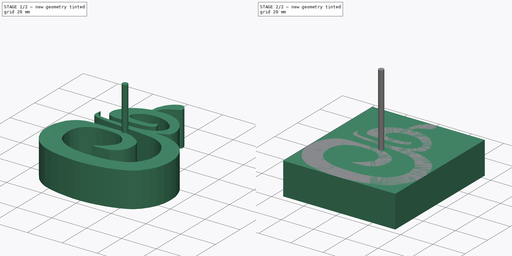
[diagram: build sequence overview — one tinted view per stage of 2, left to right]
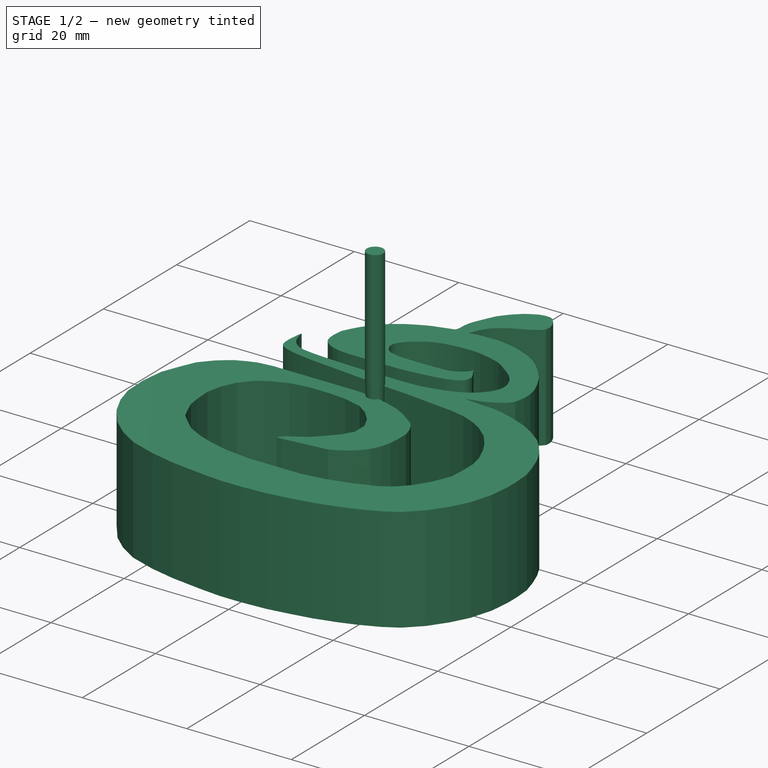
[diagram: stage 1 of 2 — iso view after this stage's code; geometry added in this stage tinted green]
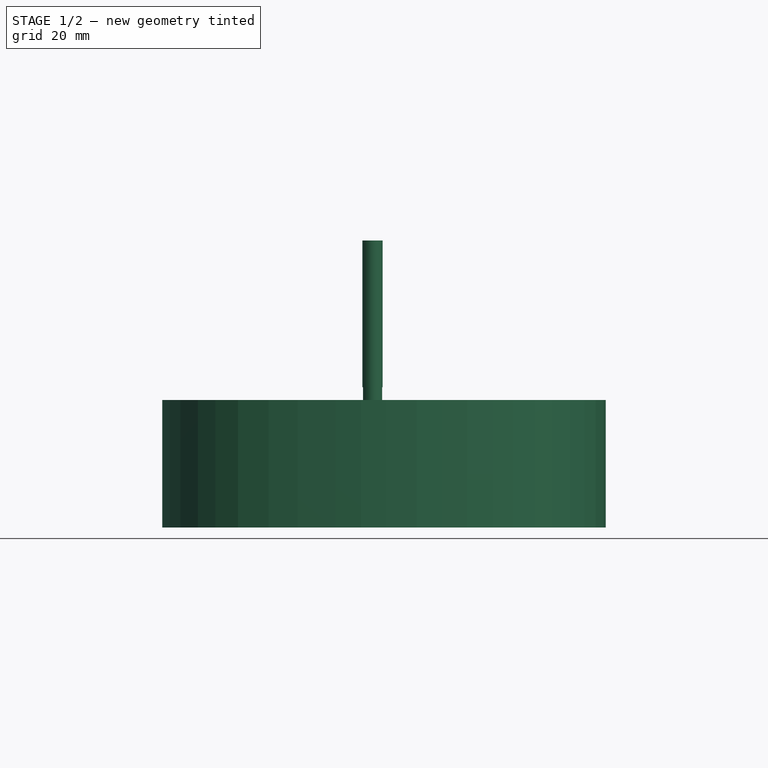
[diagram: stage 1 of 2 — front view after this stage's code; geometry added in this stage tinted green]
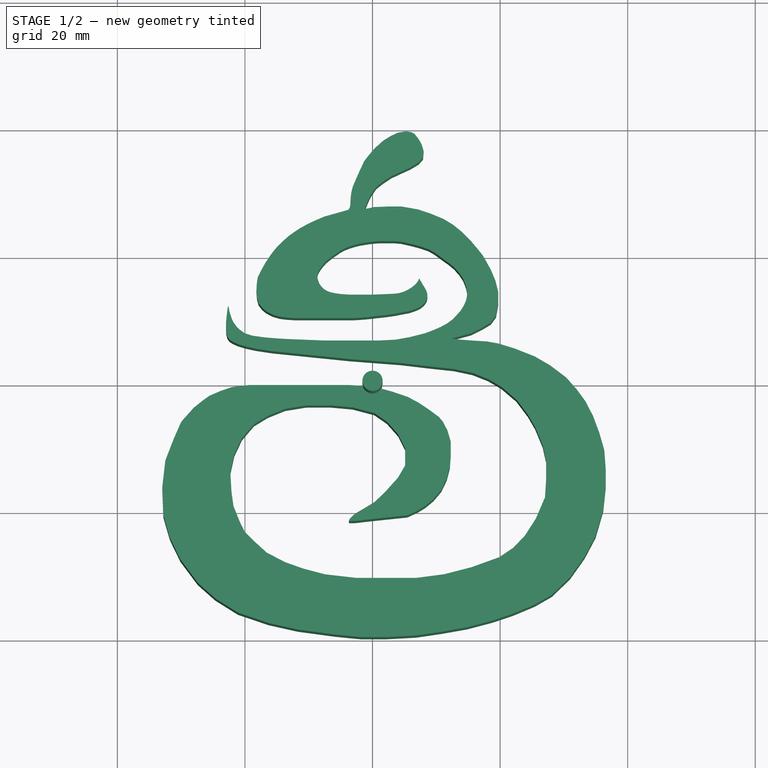
[diagram: stage 1 of 2 — top view after this stage's code; geometry added in this stage tinted green]
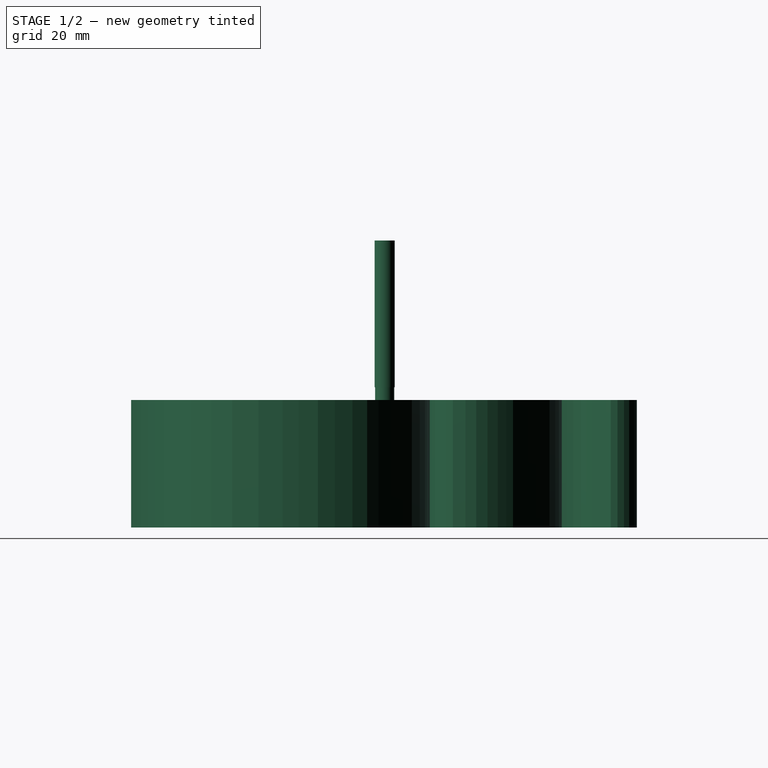
[diagram: stage 1 of 2 — right view after this stage's code; geometry added in this stage tinted green]
FCSTD DOCUMENT  (FreeCAD 1.0R)
Label: 111
License: All rights reserved
LicenseURL: https://en.wikipedia.org/wiki/All_rights_reserved
objects: Part::FeaturePython×3, App::DocumentObjectGroup×3, Path::FeaturePython×3, Image::ImagePlane×1, Sketcher::SketchObject×1, PartDesign::Pad×1, PartDesign::Body×1, App::FeaturePython×1, Part::Part2DObjectPython×1
note: 11 computed .brp shape members not serialized (recipe doc carries the construction recipe); baked Part::Feature solids carry a one-line shape summary decoded from their .brp

FEATURE [Image::ImagePlane] _e547f36fd410fd535918b487bc5c282  label="7e547f36fd410fd535918b487bc5c282"
  Placement = pos=(0,11.4,0) rot=(0,0,1;0rad)
  XSize = 107.817
  YSize = 107.817
FEATURE [Sketcher::SketchObject] Sketch
  ArcFitTolerance = 1e-06
  AttachmentSupport = -> [XY_Plane]
  FullyConstrained = false
  MakeInternals = false
  MapMode = 5
  sketch-geometry (338):
    g0: LineSegment StartX=5.15628 StartY=39.5354 StartZ=0 EndX=3.93099 EndY=39.3241 EndZ=0
    g1: LineSegment StartX=3.93099 StartY=39.3241 StartZ=0 EndX=2.79019 EndY=38.7748 EndZ=0
    g2: LineSegment StartX=2.79019 StartY=38.7748 StartZ=0 EndX=1.69164 EndY=38.0988 EndZ=0
    g3: LineSegment StartX=1.69164 StartY=38.0988 StartZ=0 EndX=0.508595 EndY=37.0425 EndZ=0
    g4: LineSegment StartX=0.508595 StartY=37.0425 StartZ=0 EndX=0 EndY=36.5035 EndZ=0
    g5: LineSegment StartX=0 StartY=36.5035 StartZ=0 EndX=-0.644927 EndY=35.7263 EndZ=0
    g6: LineSegment StartX=-0.644927 StartY=35.7263 StartZ=0 EndX=-1.28221 EndY=34.9025 EndZ=0
    g7: LineSegment StartX=-1.28221 StartY=34.9025 StartZ=0 EndX=-1.73297 EndY=33.9699 EndZ=0
    g8: LineSegment StartX=-1.73297 StartY=33.9699 StartZ=0 EndX=-2.19928 EndY=32.944 EndZ=0
    g9: LineSegment StartX=-2.19928 StartY=32.944 StartZ=0 EndX=-2.58787 EndY=32.0736 EndZ=0
    g10: LineSegment StartX=-2.58787 StartY=32.0736 StartZ=0 EndX=-3.08622 EndY=30.8876 EndZ=0
    g11: LineSegment StartX=-3.08622 StartY=30.8876 StartZ=0 EndX=-3.31937 EndY=29.986 EndZ=0
    g12: LineSegment StartX=-3.31937 StartY=29.986 StartZ=0 EndX=-3.42818 EndY=29.1001 EndZ=0
    g13: LineSegment StartX=-3.42818 StartY=29.1001 StartZ=0 EndX=-3.47481 EndY=28.0897 EndZ=0
    g14: LineSegment StartX=-3.47481 StartY=28.0897 StartZ=0 EndX=-3.58361 EndY=27.5457 EndZ=0
    g15: LineSegment StartX=-3.58361 StartY=27.5457 StartZ=0 EndX=-3.81677 EndY=27.2348 EndZ=0
    g16: LineSegment StartX=-3.81677 StartY=27.2348 StartZ=0 EndX=-4.90748 EndY=26.9332 EndZ=0
    g17: LineSegment StartX=-4.90748 StartY=26.9332 StartZ=0 EndX=-5.99552 EndY=26.6223 EndZ=0
    g18: LineSegment StartX=-5.99552 StartY=26.6223 StartZ=0 EndX=-7.59651 EndY=26.1715 EndZ=0
    g19: LineSegment StartX=-7.59651 StartY=26.1715 StartZ=0 EndX=-9.01097 EndY=25.5653 EndZ=0
    g20: LineSegment StartX=-9.01097 StartY=25.5653 StartZ=0 EndX=-10.147 EndY=25.0192 EndZ=0
    g21: LineSegment StartX=-10.147 StartY=25.0192 StartZ=0 EndX=-11.2817 EndY=24.413 EndZ=0
    g22: LineSegment StartX=-11.2817 StartY=24.413 StartZ=0 EndX=-12.2454 EndY=23.7757 EndZ=0
    g23: LineSegment StartX=-12.2454 StartY=23.7757 StartZ=0 EndX=-13.1962 EndY=23.1041 EndZ=0
    g24: LineSegment StartX=-13.1962 StartY=23.1041 StartZ=0 EndX=-13.9422 EndY=22.4202 EndZ=0
    g25: LineSegment StartX=-13.9422 StartY=22.4202 StartZ=0 EndX=-14.7505 EndY=21.6585 EndZ=0
    g26: LineSegment StartX=-14.7505 StartY=21.6585 StartZ=0 EndX=-15.451 EndY=20.863 EndZ=0
    g27: LineSegment StartX=-15.451 StartY=20.863 StartZ=0 EndX=-16.0883 EndY=20.0081 EndZ=0
    g28: LineSegment StartX=-16.0883 StartY=20.0081 StartZ=0 EndX=-16.7101 EndY=19.0755 EndZ=0
    g29: LineSegment StartX=-16.7101 StartY=19.0755 StartZ=0 EndX=-17.3629 EndY=17.9252 EndZ=0
    g30: LineSegment StartX=-17.3629 StartY=17.9252 StartZ=0 EndX=-18.0018 EndY=16.6458 EndZ=0
    g31: LineSegment StartX=5.7042 StartY=11.3544 StartZ=0 EndX=6.43654 EndY=11.5949 EndZ=0
    g32: LineSegment StartX=6.43654 StartY=11.5949 StartZ=0 EndX=6.95201 EndY=11.7834 EndZ=0
    g33: LineSegment StartX=6.95201 StartY=11.7834 StartZ=0 EndX=7.42202 EndY=12.002 EndZ=0
    g34: LineSegment StartX=7.42202 StartY=12.002 StartZ=0 EndX=7.81552 EndY=12.2971 EndZ=0
    g35: LineSegment StartX=7.81552 StartY=12.2971 StartZ=0 EndX=8.16529 EndY=12.636 EndZ=0
    g36: LineSegment StartX=8.16529 StartY=12.636 StartZ=0 EndX=8.42763 EndY=13.0185 EndZ=0
    g37: LineSegment StartX=8.42763 StartY=13.0185 StartZ=0 EndX=8.54786 EndY=13.3464 EndZ=0
    g38: LineSegment StartX=8.54786 StartY=13.3464 StartZ=0 EndX=8.59158 EndY=13.6744 EndZ=0
    g39: LineSegment StartX=8.59158 StartY=13.6744 StartZ=0 EndX=8.59158 EndY=14.0569 EndZ=0
    g40: LineSegment StartX=8.59158 StartY=14.0569 StartZ=0 EndX=8.5163 EndY=14.3278 EndZ=0
    g41: LineSegment StartX=8.5163 StartY=14.3278 StartZ=0 EndX=8.42032 EndY=14.6097 EndZ=0
    g42: LineSegment StartX=8.42032 StartY=14.6097 StartZ=0 EndX=8.27635 EndY=14.8676 EndZ=0
    g43: LineSegment StartX=8.27635 StartY=14.8676 StartZ=0 EndX=8.15038 EndY=15.0776 EndZ=0
    g44: LineSegment StartX=8.15038 StartY=15.0776 StartZ=0 EndX=8.00641 EndY=15.3176 EndZ=0
    g45: LineSegment StartX=8.00641 StartY=15.3176 StartZ=0 EndX=7.85044 EndY=15.5575 EndZ=0
    g46: LineSegment StartX=7.85044 StartY=15.5575 StartZ=0 EndX=7.69981 EndY=15.8306 EndZ=0
    g47: LineSegment StartX=7.69981 StartY=15.8306 StartZ=0 EndX=7.51985 EndY=16.1425 EndZ=0
    g48: LineSegment StartX=7.51985 StartY=16.1425 StartZ=0 EndX=7.37587 EndY=16.4005 EndZ=0
    g49: LineSegment StartX=7.37587 StartY=16.4005 StartZ=0 EndX=7.28589 EndY=16.5085 EndZ=0
    g50: LineSegment StartX=7.28589 StartY=16.5085 StartZ=0 EndX=7.2379 EndY=16.3225 EndZ=0
    g51: LineSegment StartX=7.2379 StartY=16.3225 StartZ=0 EndX=7.08793 EndY=16.0286 EndZ=0
    g52: LineSegment StartX=7.08793 StartY=16.0286 StartZ=0 EndX=6.84798 EndY=15.6986 EndZ=0
    g53: LineSegment StartX=6.84798 StartY=15.6986 StartZ=0 EndX=6.53449 EndY=15.389 EndZ=0
    g54: LineSegment StartX=6.53449 StartY=15.389 StartZ=0 EndX=6.13857 EndY=15.0891 EndZ=0
    g55: LineSegment StartX=6.13857 StartY=15.0891 StartZ=0 EndX=5.81463 EndY=14.8791 EndZ=0
    g56: LineSegment StartX=5.81463 StartY=14.8791 StartZ=0 EndX=5.44271 EndY=14.6632 EndZ=0
    g57: LineSegment StartX=5.44271 StartY=14.6632 StartZ=0 EndX=5.12438 EndY=14.5105 EndZ=0
    g58: LineSegment StartX=5.12438 StartY=14.5105 StartZ=0 EndX=4.81244 EndY=14.3845 EndZ=0
    g59: LineSegment StartX=4.81244 StartY=14.3845 StartZ=0 EndX=4.37453 EndY=14.2466 EndZ=0
    g60: LineSegment StartX=4.37453 StartY=14.2466 StartZ=0 EndX=4.0086 EndY=14.1626 EndZ=0
    g61: LineSegment StartX=4.0086 StartY=14.1626 StartZ=0 EndX=3.5287 EndY=14.1026 EndZ=0
    g62: LineSegment StartX=3.5287 StartY=14.1026 StartZ=0 EndX=3.0428 EndY=14.0726 EndZ=0
    g63: LineSegment StartX=3.0428 StartY=14.0726 StartZ=0 EndX=2.5708 EndY=14.0538 EndZ=0
    g64: LineSegment StartX=2.5708 StartY=14.0538 StartZ=0 EndX=1.99805 EndY=14.027 EndZ=0
    g65: LineSegment StartX=1.99805 StartY=14.027 StartZ=0 EndX=0.163479 EndY=13.9554 EndZ=0
    g66: LineSegment StartX=0.163479 StartY=13.9554 StartZ=0 EndX=-1.80533 EndY=13.9554 EndZ=0
    g67: LineSegment StartX=-1.80533 StartY=13.9554 StartZ=0 EndX=-3.72045 EndY=13.9554 EndZ=0
    g68: LineSegment StartX=-3.72045 StartY=13.9554 StartZ=0 EndX=-4.91597 EndY=14.0359 EndZ=0
    g69: LineSegment StartX=-4.91597 StartY=14.0359 StartZ=0 EndX=-5.75412 EndY=14.1434 EndZ=0
    g70: LineSegment StartX=-5.75412 StartY=14.1434 StartZ=0 EndX=-6.55955 EndY=14.3134 EndZ=0
    g71: LineSegment StartX=-6.55955 StartY=14.3134 StartZ=0 EndX=-7.15019 EndY=14.5371 EndZ=0
    g72: LineSegment StartX=-7.15019 StartY=14.5371 StartZ=0 EndX=-7.62733 EndY=14.8353 EndZ=0
    g73: LineSegment StartX=-7.62733 StartY=14.8353 StartZ=0 EndX=-8.02109 EndY=15.2022 EndZ=0
    g74: LineSegment StartX=-8.02109 StartY=15.2022 StartZ=0 EndX=-8.33431 EndY=15.6855 EndZ=0
    g75: LineSegment StartX=-8.33431 StartY=15.6855 StartZ=0 EndX=-8.48645 EndY=16.0613 EndZ=0
    g76: LineSegment StartX=-8.48645 StartY=16.0613 StartZ=0 EndX=-8.61173 EndY=16.4909 EndZ=0
    g77: LineSegment StartX=-8.61173 StartY=16.4909 StartZ=0 EndX=-8.62963 EndY=16.9563 EndZ=0
    g78: LineSegment StartX=-8.62963 StartY=16.9563 StartZ=0 EndX=-8.56732 EndY=17.3728 EndZ=0
    g79: LineSegment StartX=-8.56732 StartY=17.3728 StartZ=0 EndX=-8.34359 EndY=17.8202 EndZ=0
    g80: LineSegment StartX=-8.34359 StartY=17.8202 StartZ=0 EndX=-8.07512 EndY=18.2229 EndZ=0
    g81: LineSegment StartX=-8.07512 StartY=18.2229 StartZ=0 EndX=-7.6903 EndY=18.7151 EndZ=0
    g82: LineSegment StartX=-7.6903 StartY=18.7151 StartZ=0 EndX=-7.19662 EndY=19.2382 EndZ=0
    g83: LineSegment StartX=-7.19662 StartY=19.2382 StartZ=0 EndX=-6.67757 EndY=19.6498 EndZ=0
    g84: LineSegment StartX=-6.67757 StartY=19.6498 StartZ=0 EndX=-6.22116 EndY=20.0078 EndZ=0
    g85: LineSegment StartX=-6.22116 StartY=20.0078 StartZ=0 EndX=-5.63947 EndY=20.4016 EndZ=0
    g86: LineSegment StartX=-5.63947 StartY=20.4016 StartZ=0 EndX=-5.04778 EndY=20.8253 EndZ=0
    g87: LineSegment StartX=-5.04778 StartY=20.8253 StartZ=0 EndX=-4.39449 EndY=21.1833 EndZ=0
    g88: LineSegment StartX=-4.39449 StartY=21.1833 StartZ=0 EndX=-3.57117 EndY=21.4965 EndZ=0
    g89: LineSegment StartX=-3.57117 StartY=21.4965 StartZ=0 EndX=-2.72995 EndY=21.765 EndZ=0
    g90: LineSegment StartX=-2.72995 StartY=21.765 StartZ=0 EndX=-1.87083 EndY=21.9618 EndZ=0
    g91: LineSegment StartX=-1.87083 StartY=21.9618 StartZ=0 EndX=-0.761141 EndY=22.1498 EndZ=0
    g92: LineSegment StartX=-0.761141 StartY=22.1498 StartZ=0 EndX=0.429095 EndY=22.293 EndZ=0
    g93: LineSegment StartX=0.429095 StartY=22.293 StartZ=0 EndX=1.18473 EndY=22.3399 EndZ=0
    g94: LineSegment StartX=1.18473 StartY=22.3399 StartZ=0 EndX=2.36602 EndY=22.3399 EndZ=0
    g95: LineSegment StartX=2.36602 StartY=22.3399 StartZ=0 EndX=3.37727 EndY=22.3399 EndZ=0
    g96: LineSegment StartX=3.37727 StartY=22.3399 StartZ=0 EndX=4.53171 EndY=22.2325 EndZ=0
    g97: LineSegment StartX=4.53171 StartY=22.2325 StartZ=0 EndX=5.42662 EndY=22.0266 EndZ=0
    g98: LineSegment StartX=5.42662 StartY=22.0266 StartZ=0 EndX=6.3696 EndY=21.81 EndZ=0
    g99: LineSegment StartX=6.3696 StartY=21.81 StartZ=0 EndX=7.52404 EndY=21.4968 EndZ=0
    g100: LineSegment StartX=7.52404 StartY=21.4968 StartZ=0 EndX=8.73217 EndY=21.0761 EndZ=0
    g101: LineSegment StartX=8.73217 StartY=21.0761 StartZ=0 EndX=9.5376 EndY=20.6466 EndZ=0
    g102: LineSegment StartX=9.5376 StartY=20.6466 StartZ=0 EndX=10.3357 EndY=20.0881 EndZ=0
    g103: LineSegment StartX=10.3357 StartY=20.0881 StartZ=0 EndX=11.0489 EndY=19.5521 EndZ=0
    g104: LineSegment StartX=11.0489 StartY=19.5521 StartZ=0 EndX=11.9701 EndY=18.898 EndZ=0
    g105: LineSegment StartX=11.9701 StartY=18.898 StartZ=0 EndX=12.7845 EndY=18.2171 EndZ=0
    g106: LineSegment StartX=12.7845 StartY=18.2171 StartZ=0 EndX=13.5855 EndY=17.3226 EndZ=0
    g107: LineSegment StartX=13.5855 StartY=17.3226 StartZ=0 EndX=14.1863 EndY=16.4415 EndZ=0
    g108: LineSegment StartX=14.1863 StartY=16.4415 StartZ=0 EndX=14.4415 EndY=15.8179 EndZ=0
    g109: LineSegment StartX=14.4415 StartY=15.8179 StartZ=0 EndX=14.6952 EndY=15.1237 EndZ=0
    g110: LineSegment StartX=14.6952 StartY=15.1237 StartZ=0 EndX=14.8287 EndY=14.376 EndZ=0
    g111: LineSegment StartX=14.8287 StartY=14.376 StartZ=0 EndX=14.802 EndY=13.7352 EndZ=0
    g112: LineSegment StartX=14.802 StartY=13.7352 StartZ=0 EndX=14.6551 EndY=13.0009 EndZ=0
    g113: LineSegment StartX=14.6551 StartY=13.0009 StartZ=0 EndX=14.268 EndY=12.1732 EndZ=0
    g114: LineSegment StartX=14.268 StartY=12.1732 StartZ=0 EndX=13.8007 EndY=11.4122 EndZ=0
    g115: LineSegment StartX=13.8007 StartY=11.4122 StartZ=0 EndX=13.1315 EndY=10.6702 EndZ=0
    g116: LineSegment StartX=13.1315 StartY=10.6702 StartZ=0 EndX=12.5307 EndY=10.0561 EndZ=0
    g117: LineSegment StartX=12.5307 StartY=10.0561 StartZ=0 EndX=11.7297 EndY=9.45533 EndZ=0
    g118: LineSegment StartX=11.7297 StartY=9.45533 StartZ=0 EndX=10.6883 EndY=8.88125 EndZ=0
    g119: LineSegment StartX=10.6883 StartY=8.88125 StartZ=0 EndX=9.44673 EndY=8.34723 EndZ=0
    g120: LineSegment StartX=9.44673 StartY=8.34723 StartZ=0 EndX=8.19177 EndY=7.87996 EndZ=0
    g121: LineSegment StartX=8.19177 StartY=7.87996 StartZ=0 EndX=5.90349 EndY=7.30148 EndZ=0
    g122: LineSegment StartX=5.90349 StartY=7.30148 StartZ=0 EndX=3.68582 EndY=6.89382 EndZ=0
    g123: LineSegment StartX=3.68582 StartY=6.89382 StartZ=0 EndX=2.20194 EndY=6.81229 EndZ=0
    g124: LineSegment StartX=2.20194 StartY=6.81229 StartZ=0 EndX=1.04002 EndY=6.763 EndZ=0
    g125: LineSegment StartX=1.04002 StartY=6.763 StartZ=0 EndX=-0.949358 EndY=6.763 EndZ=0
    g126: LineSegment StartX=-0.949358 StartY=6.763 StartZ=0 EndX=-2.49847 EndY=6.763 EndZ=0
    g127: LineSegment StartX=-2.49847 StartY=6.763 StartZ=0 EndX=-5.09118 EndY=6.763 EndZ=0
    g128: LineSegment StartX=-5.09118 StartY=6.763 StartZ=0 EndX=-7.76541 EndY=6.763 EndZ=0
    g129: LineSegment StartX=-7.76541 StartY=6.763 StartZ=0 EndX=-9.95625 EndY=6.85142 EndZ=0
    g130: LineSegment StartX=-9.95625 StartY=6.85142 StartZ=0 EndX=-12.6083 EndY=6.95572 EndZ=0
    g131: LineSegment StartX=-12.6083 StartY=6.95572 StartZ=0 EndX=-14.5403 EndY=7.0553 EndZ=0
    g132: LineSegment StartX=-14.5403 StartY=7.0553 StartZ=0 EndX=-16.8705 EndY=7.23455 EndZ=0
    g133: LineSegment StartX=-16.8705 StartY=7.23455 StartZ=0 EndX=-18.8423 EndY=7.51339 EndZ=0
    g134: LineSegment StartX=-18.8423 StartY=7.51339 StartZ=0 EndX=-20.0373 EndY=7.8918 EndZ=0
    g135: LineSegment StartX=-20.0373 StartY=7.8918 StartZ=0 EndX=-20.8538 EndY=8.4893 EndZ=0
    g136: LineSegment StartX=-20.8538 StartY=8.4893 StartZ=0 EndX=-21.318 EndY=8.96135 EndZ=0
    g137: LineSegment StartX=-21.318 StartY=8.96135 StartZ=0 EndX=-21.6384 EndY=9.38857 EndZ=0
    g138: LineSegment StartX=-21.6384 StartY=9.38857 StartZ=0 EndX=-21.9055 EndY=9.80244 EndZ=0
    g139: LineSegment StartX=-21.9055 StartY=9.80244 StartZ=0 EndX=-22.1191 EndY=10.3231 EndZ=0
    g140: LineSegment StartX=-22.1191 StartY=10.3231 StartZ=0 EndX=-22.2793 EndY=10.8171 EndZ=0
    g141: LineSegment StartX=-22.2793 StartY=10.8171 StartZ=0 EndX=-22.4662 EndY=11.4579 EndZ=0
    g142: LineSegment StartX=-22.4662 StartY=11.4579 StartZ=0 EndX=-22.5196 EndY=11.8718 EndZ=0
    g143: LineSegment StartX=-22.5196 StartY=11.8718 StartZ=0 EndX=-22.5863 EndY=12.2189 EndZ=0
    g144: LineSegment StartX=-22.5863 StartY=12.2189 StartZ=0 EndX=-22.7198 EndY=11.8317 EndZ=0
    g145: LineSegment StartX=-22.7198 StartY=11.8317 StartZ=0 EndX=-22.7866 EndY=11.2977 EndZ=0
    g146: LineSegment StartX=-22.7866 StartY=11.2977 StartZ=0 EndX=-22.88 EndY=10.4967 EndZ=0
    g147: LineSegment StartX=-22.88 StartY=10.4967 StartZ=0 EndX=-22.9735 EndY=9.52208 EndZ=0
    g148: LineSegment StartX=-22.9735 StartY=9.52208 StartZ=0 EndX=-22.9735 EndY=8.85455 EndZ=0
    g149: LineSegment StartX=-22.9735 StartY=8.85455 StartZ=0 EndX=-22.9334 EndY=8.05352 EndZ=0
    g150: LineSegment StartX=-22.9334 StartY=8.05352 StartZ=0 EndX=-22.7461 EndY=7.33871 EndZ=0
    g151: LineSegment StartX=-22.7461 StartY=7.33871 StartZ=0 EndX=-22.4124 EndY=6.87144 EndZ=0
    g152: LineSegment StartX=-22.4124 StartY=6.87144 StartZ=0 EndX=-21.8383 EndY=6.51097 EndZ=0
    g153: LineSegment StartX=-21.8383 StartY=6.51097 StartZ=0 EndX=-21.0907 EndY=6.17721 EndZ=0
    g154: LineSegment StartX=-21.0907 StartY=6.17721 StartZ=0 EndX=-19.809 EndY=5.79004 EndZ=0
    g155: LineSegment StartX=-19.809 StartY=5.79004 StartZ=0 EndX=-18.2336 EndY=5.45628 EndZ=0
    g156: LineSegment StartX=-18.2336 StartY=5.45628 StartZ=0 EndX=-16.9253 EndY=5.25602 EndZ=0
    g157: LineSegment StartX=-16.9253 StartY=5.25602 StartZ=0 EndX=-15.6703 EndY=5.06911 EndZ=0
    g158: LineSegment StartX=-15.6703 StartY=5.06911 StartZ=0 EndX=-14.3448 EndY=4.93479 EndZ=0
    g159: LineSegment StartX=-14.3448 StartY=4.93479 StartZ=0 EndX=-3.57716 EndY=3.83753 EndZ=0
    g160: LineSegment StartX=-3.57716 StartY=3.83753 StartZ=0 EndX=4.44306 EndY=3.22059 EndZ=0
    g161: LineSegment StartX=4.44306 StartY=3.22059 StartZ=0 EndX=8.77234 EndY=2.70771 EndZ=0
    g162: LineSegment StartX=8.77234 StartY=2.70771 StartZ=0 EndX=12.8006 EndY=2.27223 EndZ=0
    g163: LineSegment StartX=12.8006 StartY=2.27223 StartZ=0 EndX=15.7038 EndY=1.65529 EndZ=0
    g164: LineSegment StartX=15.7038 StartY=1.65529 StartZ=0 EndX=18.1716 EndY=0.675443 EndZ=0
    g165: LineSegment StartX=18.1716 StartY=0.675443 StartZ=0 EndX=20.2039 EndY=-0.522145 EndZ=0
    g166: LineSegment StartX=20.2039 StartY=-0.522145 StartZ=0 EndX=22.5689 EndY=-2.53254 EndZ=0
    g167: LineSegment StartX=22.5689 StartY=-2.53254 StartZ=0 EndX=24.3471 EndY=-4.89142 EndZ=0
    g168: LineSegment StartX=24.3471 StartY=-4.89142 StartZ=0 EndX=25.5084 EndY=-6.88741 EndZ=0
    g169: LineSegment StartX=25.5084 StartY=-6.88741 StartZ=0 EndX=26.6734 EndY=-9.69848 EndZ=0
    g170: LineSegment StartX=26.6734 StartY=-9.69848 StartZ=0 EndX=27.2178 EndY=-12.0937 EndZ=0
    g171: LineSegment StartX=27.2178 StartY=-12.0937 StartZ=0 EndX=27.2178 EndY=-14.9606 EndZ=0
    g172: LineSegment StartX=27.2178 StartY=-14.9606 StartZ=0 EndX=27.0363 EndY=-17.8276 EndZ=0
    g173: LineSegment StartX=27.0363 StartY=-17.8276 StartZ=0 EndX=25.6146 EndY=-21.1489 EndZ=0
    g174: LineSegment StartX=25.6146 StartY=-21.1489 StartZ=0 EndX=23.8416 EndY=-23.8971 EndZ=0
    g175: LineSegment StartX=23.8416 StartY=-23.8971 StartZ=0 EndX=22.0242 EndY=-25.7588 EndZ=0
    g176: LineSegment StartX=22.0242 StartY=-25.7588 StartZ=0 EndX=19.8523 EndY=-27.2215 EndZ=0
    g177: LineSegment StartX=19.8523 StartY=-27.2215 StartZ=0 EndX=15.5527 EndY=-28.7729 EndZ=0
    g178: LineSegment StartX=15.5527 StartY=-28.7729 StartZ=0 EndX=11.2532 EndY=-29.881 EndZ=0
    g179: LineSegment StartX=11.2532 StartY=-29.881 StartZ=0 EndX=6.90926 EndY=-30.4573 EndZ=0
    g180: LineSegment StartX=6.90926 StartY=-30.4573 StartZ=0 EndX=1.70771 EndY=-30.4573 EndZ=0
    g181: LineSegment StartX=1.70771 StartY=-30.4573 StartZ=0 EndX=-2.59185 EndY=-30.4573 EndZ=0
    g182: LineSegment StartX=-2.59185 StartY=-30.4573 StartZ=0 EndX=-7.46764 EndY=-29.8959 EndZ=0
    g183: LineSegment StartX=-7.46764 StartY=-29.8959 StartZ=0 EndX=-10.8364 EndY=-29.0094 EndZ=0
    g184: LineSegment StartX=-10.8364 StartY=-29.0094 StartZ=0 EndX=-13.7175 EndY=-27.9899 EndZ=0
    g185: LineSegment StartX=-13.7175 StartY=-27.9899 StartZ=0 EndX=-16.5987 EndY=-26.4829 EndZ=0
    g186: LineSegment StartX=-16.5987 StartY=-26.4829 StartZ=0 EndX=-18.5168 EndY=-24.7378 EndZ=0
    g187: LineSegment StartX=-18.5168 StartY=-24.7378 StartZ=0 EndX=-20.0682 EndY=-23.1865 EndZ=0
    g188: LineSegment StartX=-20.0682 StartY=-23.1865 StartZ=0 EndX=-20.9103 EndY=-21.4134 EndZ=0
    g189: LineSegment StartX=-20.9103 StartY=-21.4134 StartZ=0 EndX=-21.7968 EndY=-19.1972 EndZ=0
    g190: LineSegment StartX=-21.7968 StartY=-19.1972 StartZ=0 EndX=-22.1077 EndY=-16.9672 EndZ=0
    g191: LineSegment StartX=-22.1077 StartY=-16.9672 StartZ=0 EndX=-22.285 EndY=-13.9087 EndZ=0
    g192: LineSegment StartX=-22.285 StartY=-13.9087 StartZ=0 EndX=-21.6644 EndY=-11.1162 EndZ=0
    g193: LineSegment StartX=-21.6644 StartY=-11.1162 StartZ=0 EndX=-20.4676 EndY=-8.58967 EndZ=0
    g194: LineSegment StartX=-20.4676 StartY=-8.58967 StartZ=0 EndX=-18.6019 EndY=-6.39868 EndZ=0
    g195: LineSegment StartX=-18.6019 StartY=-6.39868 StartZ=0 EndX=-16.43 EndY=-5.06892 EndZ=0
    g196: LineSegment StartX=-16.43 StartY=-5.06892 StartZ=0 EndX=-13.6818 EndY=-3.96079 EndZ=0
    g197: LineSegment StartX=-13.6818 StartY=-3.96079 StartZ=0 EndX=-10.4017 EndY=-3.42888 EndZ=0
    g198: LineSegment StartX=-10.4017 StartY=-3.42888 StartZ=0 EndX=-6.45677 EndY=-3.42888 EndZ=0
    g199: LineSegment StartX=-6.45677 StartY=-3.42888 StartZ=0 EndX=-3.08804 EndY=-3.73916 EndZ=0
    g200: LineSegment StartX=-3.08804 StartY=-3.73916 StartZ=0 EndX=0.280693 EndY=-4.62567 EndZ=0
    g201: LineSegment StartX=0.280693 StartY=-4.62567 StartZ=0 EndX=2.27533 EndY=-5.99976 EndZ=0
    g202: LineSegment StartX=2.27533 StartY=-5.99976 StartZ=0 EndX=4.00402 EndY=-7.95007 EndZ=0
    g203: LineSegment StartX=4.00402 StartY=-7.95007 StartZ=0 EndX=5.11216 EndY=-10.1663 EndZ=0
    g204: LineSegment StartX=5.11216 StartY=-10.1663 StartZ=0 EndX=5.11216 EndY=-12.8259 EndZ=0
    g205: LineSegment StartX=5.11216 StartY=-12.8259 StartZ=0 EndX=4.00402 EndY=-14.7319 EndZ=0
    g206: LineSegment StartX=4.00402 StartY=-14.7319 StartZ=0 EndX=2.0537 EndY=-16.9038 EndZ=0
    g207: LineSegment StartX=2.0537 StartY=-16.9038 StartZ=0 EndX=0.32507 EndY=-18.5698 EndZ=0
    g208: LineSegment StartX=0.32507 StartY=-18.5698 StartZ=0 EndX=-1.66957 EndY=-19.7666 EndZ=0
    g209: LineSegment StartX=-1.66957 StartY=-19.7666 StartZ=0 EndX=-2.73338 EndY=-20.3872 EndZ=0
    g210: LineSegment StartX=-2.73338 StartY=-20.3872 StartZ=0 EndX=-3.57556 EndY=-21.185 EndZ=0
    g211: LineSegment StartX=-3.57556 StartY=-21.185 StartZ=0 EndX=-3.70854 EndY=-21.5396 EndZ=0
    g212: LineSegment StartX=-3.70854 StartY=-21.5396 StartZ=0 EndX=-2.73338 EndY=-21.5396 EndZ=0
    g213: LineSegment StartX=-2.73338 StartY=-21.5396 StartZ=0 EndX=0 EndY=-21.2294 EndZ=0
    g214: LineSegment StartX=0 StartY=-21.2294 StartZ=0 EndX=5.46682 EndY=-20.6531 EndZ=0
    g215: LineSegment StartX=5.46682 StartY=-20.6531 StartZ=0 EndX=7.01821 EndY=-19.9439 EndZ=0
    g216: LineSegment StartX=7.01821 StartY=-19.9439 StartZ=0 EndX=8.25932 EndY=-19.1904 EndZ=0
    g217: LineSegment StartX=8.25932 StartY=-19.1904 StartZ=0 EndX=9.50043 EndY=-18.1709 EndZ=0
    g218: LineSegment StartX=9.50043 StartY=-18.1709 StartZ=0 EndX=10.7859 EndY=-16.6638 EndZ=0
    g219: LineSegment StartX=10.7859 StartY=-16.6638 StartZ=0 EndX=11.628 EndY=-14.8908 EndZ=0
    g220: LineSegment StartX=11.628 StartY=-14.8908 StartZ=0 EndX=12.1156 EndY=-13.0735 EndZ=0
    g221: LineSegment StartX=12.1156 StartY=-13.0735 StartZ=0 EndX=12.2564 EndY=-11.0554 EndZ=0
    g222: LineSegment StartX=12.2564 StartY=-11.0554 StartZ=0 EndX=12.2564 EndY=-9.06073 EndZ=0
    g223: LineSegment StartX=12.2564 StartY=-9.06073 StartZ=0 EndX=11.7245 EndY=-7.28772 EndZ=0
    g224: LineSegment StartX=11.7245 StartY=-7.28772 StartZ=0 EndX=10.971 EndY=-5.8693 EndZ=0
    g225: LineSegment StartX=-29.9898 StartY=-5.98874 StartZ=0 EndX=-31.1447 EndY=-8.62028 EndZ=0
    g226: LineSegment StartX=-31.1447 StartY=-8.62028 StartZ=0 EndX=-32.4745 EndY=-12.0333 EndZ=0
    g227: LineSegment StartX=-32.4745 StartY=-12.0333 StartZ=0 EndX=-32.9621 EndY=-16.2442 EndZ=0
    g228: LineSegment StartX=-32.9621 StartY=-16.2442 StartZ=0 EndX=-32.7856 EndY=-20.6928 EndZ=0
    g229: LineSegment StartX=-32.7856 StartY=-20.6928 StartZ=0 EndX=-31.7661 EndY=-24.1945 EndZ=0
    g230: LineSegment StartX=-31.7661 StartY=-24.1945 StartZ=0 EndX=-30.1253 EndY=-27.5821 EndZ=0
    g231: LineSegment StartX=-30.1253 StartY=-27.5821 StartZ=0 EndX=-27.3771 EndY=-31.2611 EndZ=0
    g232: LineSegment StartX=-27.3771 StartY=-31.2611 StartZ=0 EndX=-24.629 EndY=-33.699 EndZ=0
    g233: LineSegment StartX=-24.629 StartY=-33.699 StartZ=0 EndX=-21.0829 EndY=-35.9152 EndZ=0
    g234: LineSegment StartX=-21.0829 StartY=-35.9152 StartZ=0 EndX=-16.2907 EndY=-37.5379 EndZ=0
    g235: LineSegment StartX=-16.2907 StartY=-37.5379 StartZ=0 EndX=-11.7252 EndY=-38.5574 EndZ=0
    g236: LineSegment StartX=-11.7252 StartY=-38.5574 StartZ=0 EndX=-5.82994 EndY=-39.3553 EndZ=0
    g237: LineSegment StartX=-5.82994 StartY=-39.3553 StartZ=0 EndX=-1.79633 EndY=-39.7542 EndZ=0
    g238: LineSegment StartX=-1.79633 StartY=-39.7542 StartZ=0 EndX=2.1043 EndY=-39.7542 EndZ=0
    g239: LineSegment StartX=2.1043 StartY=-39.7542 StartZ=0 EndX=6.89145 EndY=-39.4883 EndZ=0
    g240: LineSegment StartX=6.89145 StartY=-39.4883 StartZ=0 EndX=10.7921 EndY=-38.912 EndZ=0
    g241: LineSegment StartX=10.7921 StartY=-38.912 StartZ=0 EndX=14.8257 EndY=-38.2028 EndZ=0
    g242: LineSegment StartX=14.8257 StartY=-38.2028 StartZ=0 EndX=18.8593 EndY=-37.139 EndZ=0
    g243: LineSegment StartX=18.8593 StartY=-37.139 StartZ=0 EndX=21.9303 EndY=-36.1128 EndZ=0
    g244: LineSegment StartX=21.9303 StartY=-36.1128 StartZ=0 EndX=25.432 EndY=-34.65 EndZ=0
    g245: LineSegment StartX=25.432 StartY=-34.65 StartZ=0 EndX=28.1358 EndY=-33.0986 EndZ=0
    g246: LineSegment StartX=28.1358 StartY=-33.0986 StartZ=0 EndX=30.9726 EndY=-30.3505 EndZ=0
    g247: LineSegment StartX=30.9726 StartY=-30.3505 StartZ=0 EndX=33.2332 EndY=-27.159 EndZ=0
    g248: LineSegment StartX=33.2332 StartY=-27.159 StartZ=0 EndX=34.9663 EndY=-23.8966 EndZ=0
    g249: LineSegment StartX=34.9663 StartY=-23.8966 StartZ=0 EndX=36.1631 EndY=-19.7744 EndZ=0
    g250: LineSegment StartX=36.1631 StartY=-19.7744 StartZ=0 EndX=36.562 EndY=-16.0067 EndZ=0
    g251: LineSegment StartX=36.562 StartY=-16.0067 StartZ=0 EndX=36.562 EndY=-13.4802 EndZ=0
    g252: LineSegment StartX=36.562 StartY=-13.4802 StartZ=0 EndX=36.3407 EndY=-10.475 EndZ=0
    g253: LineSegment StartX=36.3407 StartY=-10.475 StartZ=0 EndX=35.5872 EndY=-7.81547 EndZ=0
    g254: LineSegment StartX=35.5872 StartY=-7.81547 StartZ=0 EndX=34.5677 EndY=-5.06729 EndZ=0
    g255: LineSegment StartX=34.5677 StartY=-5.06729 StartZ=0 EndX=33.3709 EndY=-2.76237 EndZ=0
    g256: LineSegment StartX=33.3709 StartY=-2.76237 StartZ=0 EndX=32.0412 EndY=-0.945032 EndZ=0
    g257: LineSegment StartX=32.0412 StartY=-0.945032 StartZ=0 EndX=30.3568 EndY=0.960961 EndZ=0
    g258: LineSegment StartX=30.3568 StartY=0.960961 StartZ=0 EndX=27.8698 EndY=2.84294 EndZ=0
    g259: LineSegment StartX=27.8698 StartY=2.84294 StartZ=0 EndX=25.4319 EndY=4.26135 EndZ=0
    g260: LineSegment StartX=25.4319 StartY=4.26135 StartZ=0 EndX=22.2848 EndY=5.50246 EndZ=0
    g261: LineSegment StartX=22.2848 StartY=5.50246 StartZ=0 EndX=19.6696 EndY=6.30032 EndZ=0
    g262: LineSegment StartX=19.6696 StartY=6.30032 StartZ=0 EndX=17.8966 EndY=6.6106 EndZ=0
    g263: LineSegment StartX=17.8966 StartY=6.6106 StartZ=0 EndX=15.6804 EndY=6.74357 EndZ=0
    g264: LineSegment StartX=15.6804 StartY=6.74357 StartZ=0 EndX=13.4198 EndY=6.92087 EndZ=0
    g265: LineSegment StartX=13.4198 StartY=6.92087 StartZ=0 EndX=12.356 EndY=7.05385 EndZ=0
    g266: LineSegment StartX=12.356 StartY=7.05385 StartZ=0 EndX=13.6857 EndY=7.40845 EndZ=0
    g267: LineSegment StartX=13.6857 StartY=7.40845 StartZ=0 EndX=15.4587 EndY=7.89603 EndZ=0
    g268: LineSegment StartX=15.4587 StartY=7.89603 StartZ=0 EndX=17.2317 EndY=8.78254 EndZ=0
    g269: LineSegment StartX=17.2317 StartY=8.78254 StartZ=0 EndX=18.5615 EndY=9.5804 EndZ=0
    g270: LineSegment StartX=18.5615 StartY=9.5804 StartZ=0 EndX=19.3594 EndY=10.6885 EndZ=0
    g271: LineSegment StartX=19.3594 StartY=10.6885 StartZ=0 EndX=19.7141 EndY=12.6597 EndZ=0
    g272: LineSegment StartX=19.7141 StartY=12.6597 StartZ=0 EndX=19.7141 EndY=14.3441 EndZ=0
    g273: LineSegment StartX=19.7141 StartY=14.3441 StartZ=0 EndX=19.2709 EndY=16.1171 EndZ=0
    g274: LineSegment StartX=19.2709 StartY=16.1171 StartZ=0 EndX=18.606 EndY=17.7128 EndZ=0
    g275: LineSegment StartX=18.606 StartY=17.7128 StartZ=0 EndX=17.8968 EndY=19.0426 EndZ=0
    g276: LineSegment StartX=17.8968 StartY=19.0426 StartZ=0 EndX=17.2762 EndY=20.1064 EndZ=0
    g277: LineSegment StartX=17.2762 StartY=20.1064 StartZ=0 EndX=16.5215 EndY=21.0545 EndZ=0
    g278: LineSegment StartX=16.5215 StartY=21.0545 StartZ=0 EndX=15.3247 EndY=22.4729 EndZ=0
    g279: LineSegment StartX=15.3247 StartY=22.4729 StartZ=0 EndX=14.0393 EndY=23.7584 EndZ=0
    g280: LineSegment StartX=14.0393 StartY=23.7584 StartZ=0 EndX=12.6209 EndY=24.9108 EndZ=0
    g281: LineSegment StartX=12.6209 StartY=24.9108 StartZ=0 EndX=11.0695 EndY=25.8417 EndZ=0
    g282: LineSegment StartX=11.0695 StartY=25.8417 StartZ=0 EndX=8.89753 EndY=26.7282 EndZ=0
    g283: LineSegment StartX=8.89753 StartY=26.7282 StartZ=0 EndX=7.16885 EndY=27.3044 EndZ=0
    g284: LineSegment StartX=7.16885 StartY=27.3044 StartZ=0 EndX=4.54678 EndY=27.7627 EndZ=0
    g285: LineSegment StartX=4.54678 StartY=27.7627 StartZ=0 EndX=2.50781 EndY=27.7627 EndZ=0
    g286: LineSegment StartX=2.50781 StartY=27.7627 StartZ=0 EndX=0.247216 EndY=27.674 EndZ=0
    g287: LineSegment StartX=0.247216 StartY=27.674 StartZ=0 EndX=-1.21552 EndY=27.3637 EndZ=0
    g288: LineSegment StartX=-1.21552 StartY=27.3637 StartZ=0 EndX=-0.772268 EndY=28.4719 EndZ=0
    g289: LineSegment StartX=-0.772268 StartY=28.4719 StartZ=0 EndX=-0.284688 EndY=29.5357 EndZ=0
    g290: LineSegment StartX=-0.284688 StartY=29.5357 StartZ=0 EndX=0.557495 EndY=30.7768 EndZ=0
    g291: LineSegment StartX=0.557495 StartY=30.7768 StartZ=0 EndX=1.66563 EndY=31.6633 EndZ=0
    g292: LineSegment StartX=1.66563 StartY=31.6633 StartZ=0 EndX=2.95106 EndY=32.5055 EndZ=0
    g293: LineSegment StartX=2.95106 StartY=32.5055 StartZ=0 EndX=4.36948 EndY=33.1704 EndZ=0
    g294: LineSegment StartX=4.36948 StartY=33.1704 StartZ=0 EndX=5.92087 EndY=33.8796 EndZ=0
    g295: LineSegment StartX=5.92087 StartY=33.8796 StartZ=0 EndX=7.25063 EndY=34.6774 EndZ=0
    g296: LineSegment StartX=7.25063 StartY=34.6774 StartZ=0 EndX=7.91551 EndY=35.4309 EndZ=0
    g297: LineSegment StartX=7.91551 StartY=35.4309 StartZ=0 EndX=8.00416 EndY=36.4948 EndZ=0
    g298: LineSegment StartX=8.00416 StartY=36.4948 StartZ=0 EndX=7.69388 EndY=37.5142 EndZ=0
    g299: LineSegment StartX=7.69388 StartY=37.5142 StartZ=0 EndX=7.25063 EndY=38.3121 EndZ=0
    g300: LineSegment StartX=7.25063 StartY=38.3121 StartZ=0 EndX=6.54142 EndY=39.1986 EndZ=0
    g301: LineSegment StartX=6.54142 StartY=39.1986 StartZ=0 EndX=5.99072 EndY=39.4504 EndZ=0
    g302: LineSegment StartX=5.99072 StartY=39.4504 StartZ=0 EndX=5.15628 EndY=39.5354 EndZ=0
    g303: LineSegment StartX=-18.0018 StartY=16.6458 StartZ=0 EndX=-18.1538 EndY=15.5563 EndZ=0
    g304: LineSegment StartX=-18.1538 StartY=15.5563 StartZ=0 EndX=-18.2002 EndY=14.6055 EndZ=0
    g305: LineSegment StartX=-18.2002 StartY=14.6055 StartZ=0 EndX=-18.1074 EndY=13.4693 EndZ=0
    g306: LineSegment StartX=-18.1074 StartY=13.4693 StartZ=0 EndX=-17.8524 EndY=12.5882 EndZ=0
    g307: LineSegment StartX=-17.8524 StartY=12.5882 StartZ=0 EndX=-17.2958 EndY=11.8693 EndZ=0
    g308: LineSegment StartX=-17.2958 StartY=11.8693 StartZ=0 EndX=-16.6929 EndY=11.3592 EndZ=0
    g309: LineSegment StartX=-16.6929 StartY=11.3592 StartZ=0 EndX=-15.6495 EndY=10.8027 EndZ=0
    g310: LineSegment StartX=-15.6495 StartY=10.8027 StartZ=0 EndX=-14.5133 EndY=10.478 EndZ=0
    g311: LineSegment StartX=-14.5133 StartY=10.478 StartZ=0 EndX=-13.4002 EndY=10.3389 EndZ=0
    g312: LineSegment StartX=-13.4002 StartY=10.3389 StartZ=0 EndX=-12.0049 EndY=10.2565 EndZ=0
    g313: LineSegment StartX=-12.0049 StartY=10.2565 StartZ=0 EndX=-9.51143 EndY=10.2565 EndZ=0
    g314: LineSegment StartX=-9.51143 StartY=10.2565 StartZ=0 EndX=-4.30657 EndY=10.2565 EndZ=0
    g315: LineSegment StartX=-4.30657 StartY=10.2565 StartZ=0 EndX=-3.05357 EndY=10.2565 EndZ=0
    g316: LineSegment StartX=-3.05357 StartY=10.2565 StartZ=0 EndX=-1.91447 EndY=10.3237 EndZ=0
    g317: LineSegment StartX=-1.91447 StartY=10.3237 StartZ=0 EndX=-0.604514 EndY=10.4376 EndZ=0
    g318: LineSegment StartX=-0.604514 StartY=10.4376 StartZ=0 EndX=2.24718 EndY=10.7607 EndZ=0
    g319: LineSegment StartX=2.24718 StartY=10.7607 StartZ=0 EndX=3.55714 EndY=10.9506 EndZ=0
    g320: LineSegment StartX=3.55714 StartY=10.9506 StartZ=0 EndX=4.88608 EndY=11.2164 EndZ=0
    g321: LineSegment StartX=4.88608 StartY=11.2164 StartZ=0 EndX=5.7042 EndY=11.3544 EndZ=0
    g322: LineSegment StartX=-29.9898 StartY=-5.98874 StartZ=0 EndX=-28.0616 EndY=-3.82125 EndZ=0
    g323: LineSegment StartX=-28.0616 StartY=-3.82125 StartZ=0 EndX=-26.784 EndY=-2.78132 EndZ=0
    g324: LineSegment StartX=-26.784 StartY=-2.78132 StartZ=0 EndX=-25.5955 EndY=-1.91967 EndZ=0
    g325: LineSegment StartX=-25.5955 StartY=-1.91967 StartZ=0 EndX=-23.7236 EndY=-1.11744 EndZ=0
    g326: LineSegment StartX=-23.7236 StartY=-1.11744 StartZ=0 EndX=-22.0894 EndY=-0.552906 EndZ=0
    g327: LineSegment StartX=-22.0894 StartY=-0.552906 StartZ=0 EndX=-19.4153 EndY=-0.226071 EndZ=0
    g328: LineSegment StartX=-2.06342 StartY=-0.315208 StartZ=0 EndX=0.919342 EndY=-0.672844 EndZ=0
    g329: LineSegment StartX=0.919342 StartY=-0.672844 StartZ=0 EndX=3.02891 EndY=-1.23738 EndZ=0
    g330: LineSegment StartX=3.02891 StartY=-1.23738 StartZ=0 EndX=5.55445 EndY=-2.09903 EndZ=0
    g331: LineSegment StartX=5.55445 StartY=-2.09903 StartZ=0 EndX=7.21833 EndY=-2.99039 EndZ=0
    g332: LineSegment StartX=7.21833 StartY=-2.99039 StartZ=0 EndX=8.82278 EndY=-4.06003 EndZ=0
    g333: LineSegment StartX=8.82278 StartY=-4.06003 StartZ=0 EndX=10.3726 EndY=-5.20442 EndZ=0
    g334: LineSegment StartX=10.3726 StartY=-5.20442 StartZ=0 EndX=10.971 EndY=-5.8693 EndZ=0
    g335: LineSegment StartX=-19.4153 StartY=-0.226071 StartZ=0 EndX=-14.4141 EndY=-0.226071 EndZ=0
    g336: LineSegment StartX=-14.4141 StartY=-0.226071 StartZ=0 EndX=-3.75863 EndY=-0.226071 EndZ=0
    g337: LineSegment StartX=-3.75863 StartY=-0.226071 StartZ=0 EndX=-2.06342 EndY=-0.315208 EndZ=0
  constraints (363):
    c: Coincident(g0,g1)
    c: Coincident(g1,g2)
    c: Coincident(g2,g3)
    c: Coincident(g3,g4)
    c: PointOnObject(g4,g-2)
    c: Coincident(g4,g5)
    c: Coincident(g5,g6)
    c: Coincident(g6,g7)
    c: Coincident(g7,g8)
    c: Coincident(g8,g9)
    c: Coincident(g9,g10)
    c: Coincident(g10,g11)
    c: Coincident(g11,g12)
    c: Coincident(g12,g13)
    c: Coincident(g13,g14)
    c: Coincident(g14,g15)
    c: Coincident(g15,g16)
    c: Coincident(g16,g17)
    c: Coincident(g17,g18)
    c: Coincident(g18,g19)
    c: Coincident(g19,g20)
    c: Coincident(g20,g21)
    c: Coincident(g21,g22)
    c: Coincident(g22,g23)
    c: Coincident(g23,g24)
    c: Coincident(g24,g25)
    c: Coincident(g25,g26)
    c: Coincident(g26,g27)
    c: Coincident(g27,g28)
    c: Coincident(g28,g29)
    c: Coincident(g29,g30)
    c: Coincident(g31,g32)
    c: Coincident(g32,g33)
    c: Coincident(g33,g34)
    c: Coincident(g34,g35)
    c: Coincident(g35,g36)
    c: Coincident(g36,g37)
    c: Coincident(g37,g38)
    c: Coincident(g38,g39)
    c: Vertical(g39)
    c: Coincident(g39,g40)
    c: Coincident(g40,g41)
    c: Coincident(g41,g42)
    c: Coincident(g42,g43)
    c: Coincident(g43,g44)
    c: Coincident(g44,g45)
    c: Coincident(g45,g46)
    c: Coincident(g46,g47)
    c: Coincident(g47,g48)
    c: Coincident(g48,g49)
    c: Coincident(g49,g50)
    c: Coincident(g50,g51)
    c: Coincident(g51,g52)
    c: Coincident(g52,g53)
    c: Coincident(g53,g54)
    c: Coincident(g54,g55)
    c: Coincident(g55,g56)
    c: Coincident(g56,g57)
    c: Coincident(g57,g58)
    c: Coincident(g58,g59)
    c: Coincident(g59,g60)
    c: Coincident(g60,g61)
    c: Coincident(g61,g62)
    c: Coincident(g62,g63)
    c: Coincident(g63,g64)
    c: Coincident(g64,g65)
    c: Coincident(g65,g66)
    c: Horizontal(g66)
    c: Coincident(g66,g67)
    c: Horizontal(g67)
    c: Coincident(g67,g68)
    c: Coincident(g68,g69)
    c: Coincident(g69,g70)
    c: Coincident(g70,g71)
    c: Coincident(g71,g72)
    c: Coincident(g72,g73)
    c: Coincident(g73,g74)
    c: Coincident(g74,g75)
    c: Coincident(g75,g76)
    c: Coincident(g76,g77)
    c: Coincident(g78,g79)
    c: Coincident(g79,g80)
    c: Coincident(g80,g81)
    c: Coincident(g81,g82)
    c: Coincident(g82,g83)
    c: Coincident(g83,g84)
    c: Coincident(g84,g85)
    c: Coincident(g85,g86)
    c: Coincident(g86,g87)
    c: Coincident(g87,g88)
    c: Coincident(g88,g89)
    c: Coincident(g89,g90)
    c: Coincident(g90,g91)
    c: Coincident(g91,g92)
    c: Coincident(g92,g93)
    c: Coincident(g93,g94)
    c: Horizontal(g94)
    c: Coincident(g94,g95)
    c: Horizontal(g95)
    c: Coincident(g95,g96)
    c: Coincident(g96,g97)
    c: Coincident(g97,g98)
    c: Coincident(g98,g99)
    c: Coincident(g99,g100)
    c: Coincident(g100,g101)
    c: Coincident(g101,g102)
    c: Coincident(g102,g103)
    c: Coincident(g103,g104)
    c: Coincident(g104,g105)
    c: Coincident(g105,g106)
    c: Coincident(g106,g107)
    c: Coincident(g107,g108)
    c: Coincident(g108,g109)
    c: Coincident(g109,g110)
    c: Coincident(g110,g111)
    c: Coincident(g111,g112)
    c: Coincident(g112,g113)
    c: Coincident(g113,g114)
    c: Coincident(g114,g115)
    c: Coincident(g115,g116)
    c: Coincident(g116,g117)
    c: Coincident(g117,g118)
    c: Coincident(g118,g119)
    c: Coincident(g119,g120)
    c: Coincident(g120,g121)
    c: Coincident(g121,g122)
    c: Coincident(g122,g123)
    c: Coincident(g123,g124)
    c: Coincident(g124,g125)
    c: Horizontal(g125)
    c: Coincident(g125,g126)
    c: Horizontal(g126)
    c: Coincident(g126,g127)
    c: Horizontal(g127)
    c: Coincident(g127,g128)
    c: Horizontal(g128)
    c: Coincident(g128,g129)
    c: Coincident(g129,g130)
    c: Coincident(g130,g131)
    c: Coincident(g131,g132)
    c: Coincident(g132,g133)
    c: Coincident(g133,g134)
    c: Coincident(g134,g135)
    c: Coincident(g135,g136)
    c: Coincident(g136,g137)
    c: Coincident(g137,g138)
    c: Coincident(g138,g139)
    c: Coincident(g139,g140)
    c: Coincident(g140,g141)
    c: Coincident(g141,g142)
    c: Coincident(g142,g143)
    c: Coincident(g143,g144)
    c: Coincident(g144,g145)
    c: Coincident(g145,g146)
    c: Coincident(g146,g147)
    c: Coincident(g147,g148)
    c: Vertical(g148)
    c: Coincident(g148,g149)
    c: Coincident(g149,g150)
    c: Coincident(g150,g151)
    c: Coincident(g151,g152)
    c: Coincident(g152,g153)
    c: Coincident(g153,g154)
    c: Coincident(g154,g155)
    c: Coincident(g155,g156)
    c: Coincident(g156,g157)
    c: Coincident(g157,g158)
    c: Coincident(g158,g159)
    c: Coincident(g159,g160)
    c: Coincident(g160,g161)
    c: Coincident(g161,g162)
    c: Coincident(g162,g163)
    c: Coincident(g163,g164)
    c: Coincident(g164,g165)
    c: Coincident(g165,g166)
    c: Coincident(g166,g167)
    c: Coincident(g167,g168)
    c: Coincident(g168,g169)
    c: Coincident(g169,g170)
    c: Coincident(g170,g171)
    c: Vertical(g171)
    c: Coincident(g171,g172)
    c: Coincident(g172,g173)
    c: Coincident(g173,g174)
    c: Coincident(g174,g175)
    c: Coincident(g175,g176)
    c: Coincident(g176,g177)
    c: Coincident(g177,g178)
    c: Coincident(g178,g179)
    c: Coincident(g179,g180)
    c: Horizontal(g180)
    c: Coincident(g180,g181)
    c: Horizontal(g181)
    c: Coincident(g181,g182)
    c: Coincident(g182,g183)
    c: Coincident(g183,g184)
    c: Coincident(g184,g185)
    c: Coincident(g185,g186)
    c: Coincident(g186,g187)
    c: Coincident(g187,g188)
    c: Coincident(g188,g189)
    c: Coincident(g189,g190)
    c: Coincident(g190,g191)
    c: Coincident(g191,g192)
    c: Coincident(g192,g193)
    c: Coincident(g193,g194)
    c: Coincident(g194,g195)
    c: Coincident(g195,g196)
    c: Coincident(g196,g197)
    c: Coincident(g197,g198)
    c: Horizontal(g198)
    c: Coincident(g198,g199)
    c: Coincident(g199,g200)
    c: Coincident(g200,g201)
    c: Coincident(g201,g202)
    c: Coincident(g202,g203)
    c: Coincident(g203,g204)
    c: Vertical(g204)
    c: Coincident(g204,g205)
    c: Coincident(g205,g206)
    c: Coincident(g206,g207)
    c: Coincident(g207,g208)
    c: Coincident(g208,g209)
    c: Coincident(g209,g210)
    c: Coincident(g210,g211)
    c: Coincident(g211,g212)
    c: Horizontal(g212)
    c: Coincident(g212,g213)
    c: PointOnObject(g213,g-2)
    c: Coincident(g213,g214)
    c: Coincident(g214,g215)
    c: Coincident(g215,g216)
    c: Coincident(g216,g217)
    c: Coincident(g217,g218)
    c: Coincident(g218,g219)
    c: Coincident(g219,g220)
    c: Coincident(g220,g221)
    c: Coincident(g221,g222)
    c: Vertical(g222)
    c: Coincident(g222,g223)
    c: Coincident(g223,g224)
    c: Coincident(g225,g226)
    c: Coincident(g226,g227)
    c: Coincident(g227,g228)
    c: Coincident(g228,g229)
    c: Coincident(g229,g230)
    c: Coincident(g230,g231)
    c: Coincident(g231,g232)
    c: Coincident(g232,g233)
    c: Coincident(g233,g234)
    c: Coincident(g234,g235)
    c: Coincident(g235,g236)
    c: Coincident(g236,g237)
    c: Coincident(g237,g238)
    c: Horizontal(g238)
    c: Coincident(g238,g239)
    c: Coincident(g239,g240)
    c: Coincident(g240,g241)
    c: Coincident(g241,g242)
    c: Coincident(g242,g243)
    c: Coincident(g243,g244)
    c: Coincident(g244,g245)
    c: Coincident(g245,g246)
    c: Coincident(g246,g247)
    c: Coincident(g247,g248)
    c: Coincident(g248,g249)
    c: Coincident(g249,g250)
    c: Coincident(g250,g251)
    c: Vertical(g251)
    c: Coincident(g251,g252)
    c: Coincident(g252,g253)
    c: Coincident(g253,g254)
    c: Coincident(g254,g255)
    c: Coincident(g255,g256)
    c: Coincident(g256,g257)
    c: Coincident(g257,g258)
    c: Coincident(g258,g259)
    c: Coincident(g259,g260)
    c: Coincident(g260,g261)
    c: Coincident(g261,g262)
    c: Coincident(g262,g263)
    c: Coincident(g263,g264)
    c: Coincident(g264,g265)
    c: Coincident(g265,g266)
    c: Coincident(g266,g267)
    c: Coincident(g267,g268)
    c: Coincident(g268,g269)
    c: Coincident(g269,g270)
    c: Coincident(g270,g271)
    c: Coincident(g271,g272)
    c: Vertical(g272)
    c: Coincident(g272,g273)
    c: Coincident(g273,g274)
    c: Coincident(g274,g275)
    c: Coincident(g275,g276)
    c: Coincident(g276,g277)
    c: Coincident(g277,g278)
    c: Coincident(g278,g279)
    c: Coincident(g279,g280)
    c: Coincident(g280,g281)
    c: Coincident(g281,g282)
    c: Coincident(g282,g283)
    c: Coincident(g283,g284)
    c: Coincident(g284,g285)
    c: Horizontal(g285)
    c: Coincident(g285,g286)
    c: Coincident(g286,g287)
    c: Coincident(g287,g288)
    c: Coincident(g288,g289)
    c: Coincident(g289,g290)
    c: Coincident(g290,g291)
    c: Coincident(g291,g292)
    c: Coincident(g292,g293)
    c: Coincident(g293,g294)
    c: Coincident(g294,g295)
    c: Coincident(g295,g296)
    c: Coincident(g296,g297)
    c: Coincident(g297,g298)
    c: Coincident(g298,g299)
    c: Coincident(g299,g300)
    c: Coincident(g300,g301)
    c: Coincident(g301,g302)
    c: Coincident(g302,g0)
    c: Coincident(g30,g303)
    c: Coincident(g303,g304)
    c: Coincident(g304,g305)
    c: Coincident(g305,g306)
    c: Coincident(g306,g307)
    c: Coincident(g307,g308)
    c: Coincident(g308,g309)
    c: Coincident(g309,g310)
    c: Coincident(g310,g311)
    c: Coincident(g311,g312)
    c: Coincident(g312,g313)
    c: Horizontal(g313)
    c: Coincident(g313,g314)
    c: Horizontal(g314)
    c: Coincident(g314,g315)
    c: Horizontal(g315)
    c: Coincident(g315,g316)
    c: Coincident(g316,g317)
    c: Coincident(g317,g318)
    c: Coincident(g318,g319)
    c: Coincident(g319,g320)
    c: Coincident(g320,g321)
    c: Coincident(g322,g323)
    c: Coincident(g323,g324)
    c: Coincident(g324,g325)
    c: Coincident(g325,g326)
    c: Coincident(g326,g327)
    c: Coincident(g328,g329)
    c: Coincident(g329,g330)
    c: Coincident(g330,g331)
    c: Coincident(g331,g332)
    c: Coincident(g332,g333)
    c: Coincident(g333,g334)
    c: Coincident(g334,g224)
    c: Coincident(g327,g335)
    c: Horizontal(g335)
    c: Coincident(g335,g336)
    c: Horizontal(g336)
    c: Coincident(g336,g337)
    c: Coincident(g337,g328)
FEATURE [PartDesign::Pad] Pad
  Direction = (0,0,1)
  Length = 20
  Length2 = 10
  Profile = -> Sketch
  ReferenceAxis = -> Sketch [N_Axis]
  Refine = true
  Suppressed = false
  Type = 0
FEATURE [Part::FeaturePython] ToolBit001  label="3mm"  # Path/CAM toolbit (typed FeaturePython)
  BitPropertyNames = Chipload | CuttingEdgeHeight | Diameter | Flutes | Length | Material | ShankDiameter | SpindleDirection
  BitShape = <path>
  Chipload = 0
  CuttingEdgeHeight = 22
  Diameter = 3
  File = <userpath>/.local/share/FreeCAD/Macro/Bit/3mm.fctb
  Flutes = 0
  Length = 45
  Material = 0
  ShankDiameter = 3.17
  ShapeName = endmill
  SpindleDirection = 0
FEATURE [Path::FeaturePython] _mm  label="3mm001"  # Path/CAM operation (typed FeaturePython)
  HorizFeed = 6
  HorizRapid = 0
  SpindleDir = 0
  SpindleSpeed = 10000
  Tool = -> ToolBit001
  ToolNumber = 2
  VertFeed = 6
  VertRapid = 0
  expr: HorizRapid = SetupSheet.HorizRapid
  expr: VertRapid = SetupSheet.VertRapid
FEATURE [App::DocumentObjectGroup] Tools
  Group = -> [_mm]
FEATURE [Path::FeaturePython] Profile  # Path/CAM operation (typed FeaturePython)
  Active = true
  AreaParams:
    Tolerance = 1e-07
    FitArcs = True
    Simplify = False
    CleanDistance = 0.0
    Accuracy = 0.01
    Unit = 1.0
    MinArcPoints = 4
    MaxArcPoints = 100
    ClipperScale = 10000000.0
    Fill = 0
    Coplanar = 0
    Reorient = True
    Outline = False
    Explode = False
    OpenMode = 0
    Deflection = 0.01
    SubjectFill = 0
    ClipFill = 0
    Offset = 1.5
    ExtraPass = 0
    Stepover = 0.0
    LastStepover = 0.0
    JoinType = 0
    EndType = 0
    MiterLimit = 2.0
    RoundPrecision = 0.0
    PocketMode = 0
    ToolRadius = 1.0
    PocketExtraOffset = 0.0
    PocketStepover = 0.0
    PocketLastStepover = 0.0
    FromCenter = False
    Angle = 45.0
    AngleShift = 0.0
    Shift = 0.0
    Thicken = False
    SectionCount = -1
    Stepdown = 1.0
    SectionOffset = 0.0
    SectionTolerance = 1e-06
    SectionMode = 2
    Project = False
  Base = -> [Clone]
  ClearanceHeight = 5
  CoolantMode = 0
  CycleTime = 00:16:29
  Direction = 0
  FinalDepth = -20
  HandleMultipleFeatures = 0
  JoinType = 0
  MiterLimit = 0.1
  OffsetExtra = 0
  OpFinalDepth = -20
  OpStartDepth = 0
  OpStockZMax = 0
  OpStockZMin = -20
  OpToolDiameter = 3
  PathParams = {'orientation': 1, 'feedrate': 6.0, 'feedrate_v': 6.0, 'verbose': True, 'resume_height': 3.0, 'retraction': 5.0, 'return_end': True, 'preamble': False}
  SafeHeight = 3
  Side = 0
  SplitArcs = false
  StartDepth = 0
  StartPoint = (0,0,0)
  StepDown = 2
  ToolController = -> _mm
  UseComp = true
  UseStartPoint = false
  processCircles = false
  processHoles = false
  processPerimeter = true
  expr: ClearanceHeight = OpStockZMax + SetupSheet.ClearanceHeightOffset
  expr: FinalDepth = OpFinalDepth
  expr: SafeHeight = OpStockZMax + SetupSheet.SafeHeightOffset
  expr: StartDepth = OpStartDepth
  expr: StepDown = 2
FEATURE [App::DocumentObjectGroup] Operations
  Group = -> [Profile]
FEATURE [Path::FeaturePython] Job  # Path/CAM operation (typed FeaturePython)
  CycleTime = 00:16:29
  Fixtures = G54
  GeometryTolerance = 0.01
  JobType = 0
  Model = -> Model
  Operations = -> Operations
  OrderOutputBy = 0
  PostProcessor = 11
  PostProcessorOutputFile = %Ddingzhi.nc
  SetupSheet = -> SetupSheet
  SplitOutput = false
  Stock = -> Stock001
  Tools = -> Tools
FEATURE [Part::Part2DObjectPython] Rectangle  # Draft 2D object (typed FeaturePython)
  Area = 6400
  ChamferSize = 0
  Columns = 1
  FilletRadius = 0
  Height = 80
  Length = 80
  MakeFace = true
  Placement = pos=(-40,-40,0) rot=(0,0,1;0rad)
  Rows = 1
note: 1 file-system path scrubbed to <path> (originals preserved in the JSON sidecar)
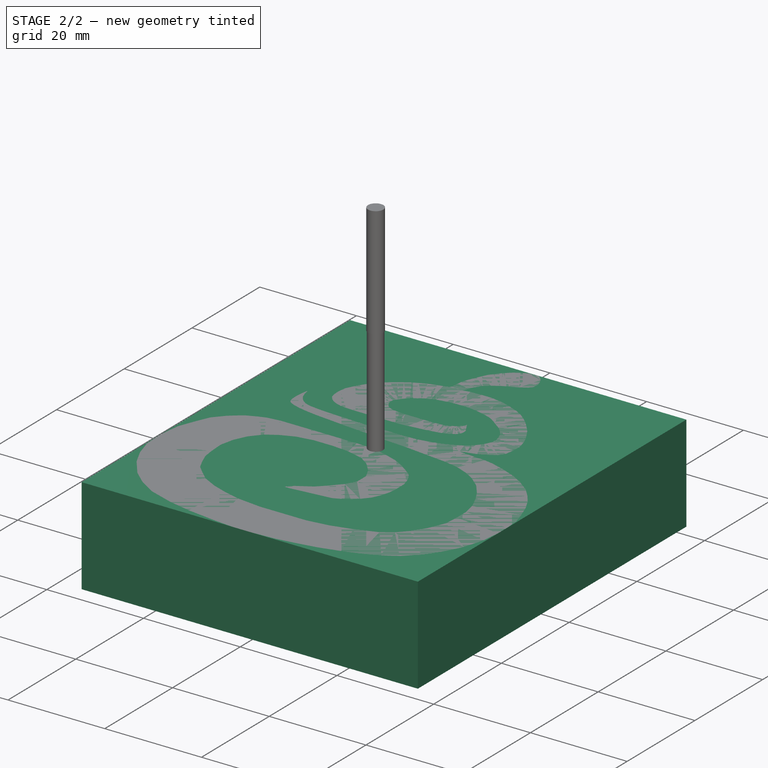
[diagram: stage 2 of 2 — iso view after this stage's code; geometry added in this stage tinted green]
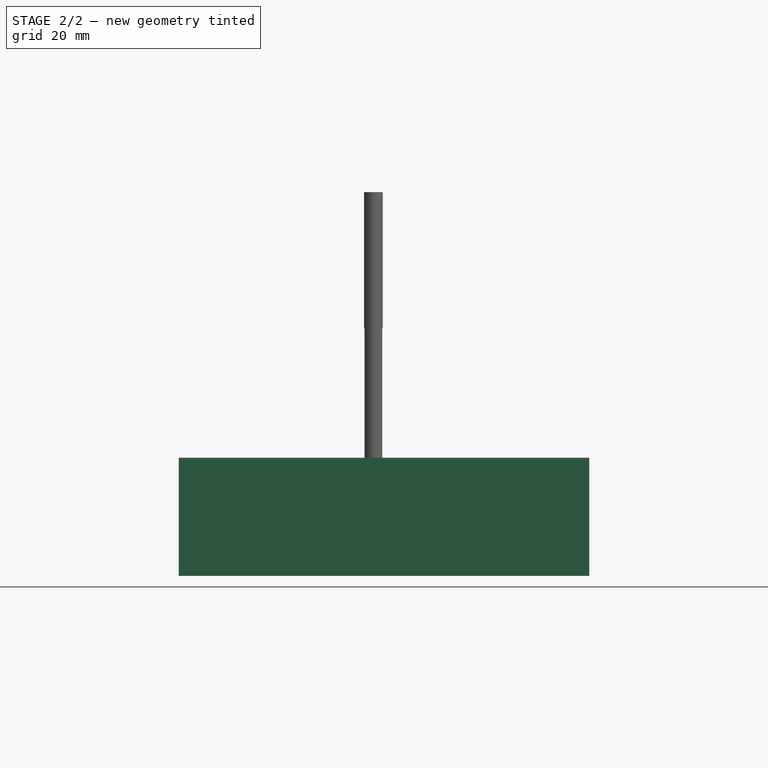
[diagram: stage 2 of 2 — front view after this stage's code; geometry added in this stage tinted green]
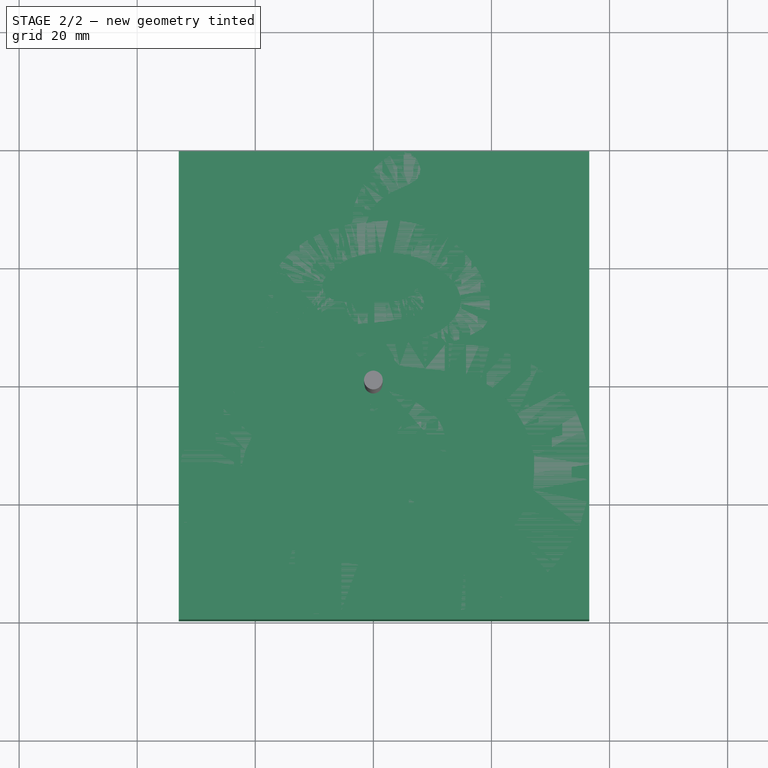
[diagram: stage 2 of 2 — top view after this stage's code; geometry added in this stage tinted green]
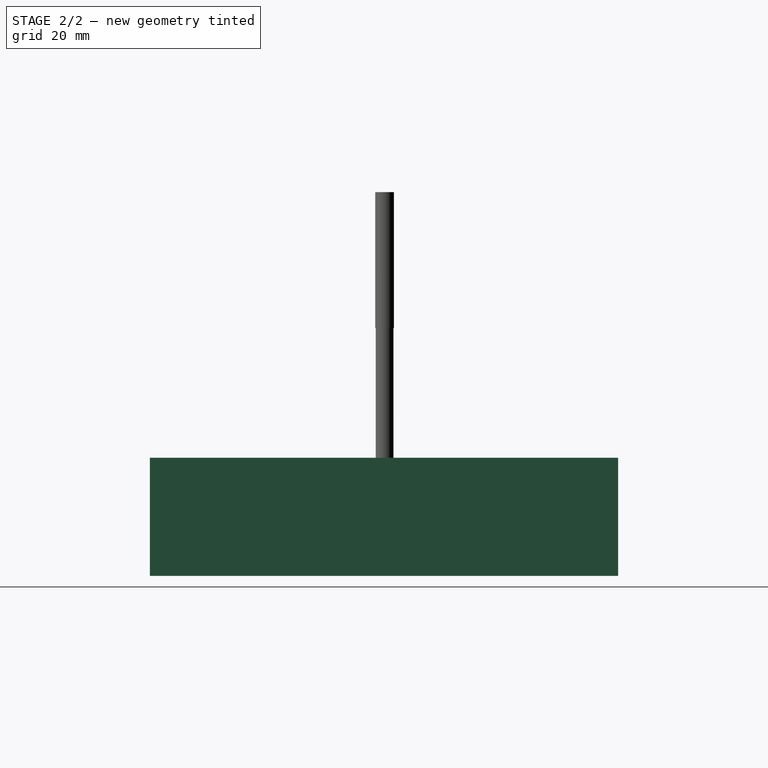
[diagram: stage 2 of 2 — right view after this stage's code; geometry added in this stage tinted green]
FEATURE [PartDesign::Body] Body
  AllowCompound = false
  Group = -> [Sketch,Pad]
  Origin = -> Origin
  Placement = pos=(0,0,-20) rot=(0,0,1;0rad)
  Tip = -> Pad
FEATURE [App::FeaturePython] SetupSheet  # Path/CAM operation (typed FeaturePython)
  ClearanceHeightExpression = OpStockZMax+SetupSheet.ClearanceHeightOffset
  ClearanceHeightOffset = 5
  CoolantMode = 0
  CoolantModes = None | Flood | Mist
  FinalDepthExpression = OpFinalDepth
  HorizRapid = 0
  SafeHeightExpression = OpStockZMax+SetupSheet.SafeHeightOffset
  SafeHeightOffset = 3
  StartDepthExpression = OpStartDepth
  StepDownExpression = OpToolDiameter
  VertRapid = 0
FEATURE [Part::FeaturePython] Clone  label="Model-Body"  # Draft clone (typed FeaturePython)
  AttacherType = Attacher::AttachEngine3D
  Fuse = false
  Objects = -> [Body]
  PathResource = Model
  Placement = pos=(0,0,-20) rot=(0,0,1;0rad)
  Scale = (1,1,1)
FEATURE [App::DocumentObjectGroup] Model
  Group = -> [Clone]
FEATURE [Part::FeaturePython] Stock001  # WARN: FeaturePython — macro-defined, semantics opaque (R4)
  Height = 20
  Length = 69.52
  Placement = pos=(-32.9621,-39.7542,-20) rot=(0,0,1;0rad)
  StockType = CreateBox
  Width = 79.29
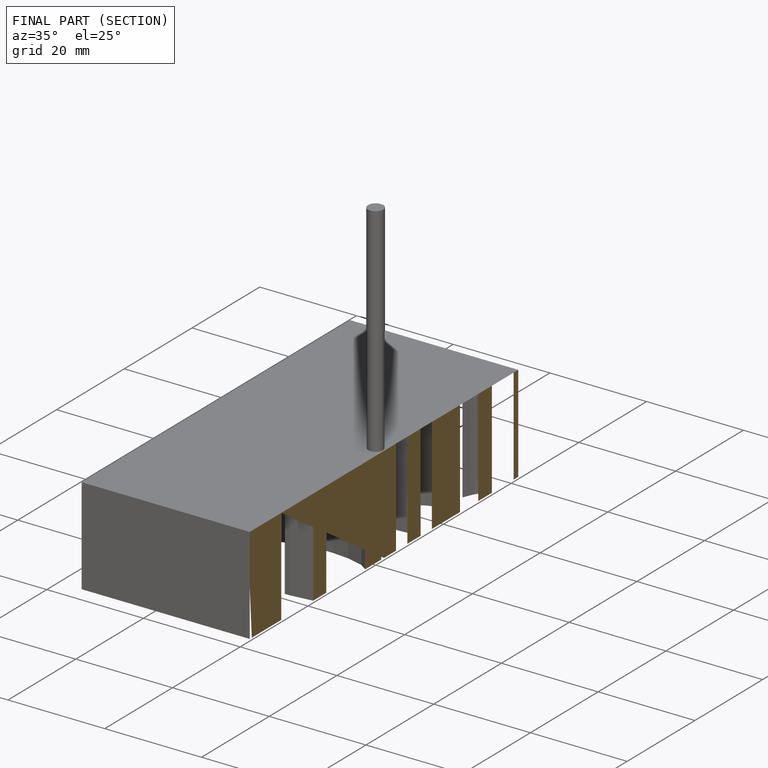
[diagram: finished part — half-section view (interior)]
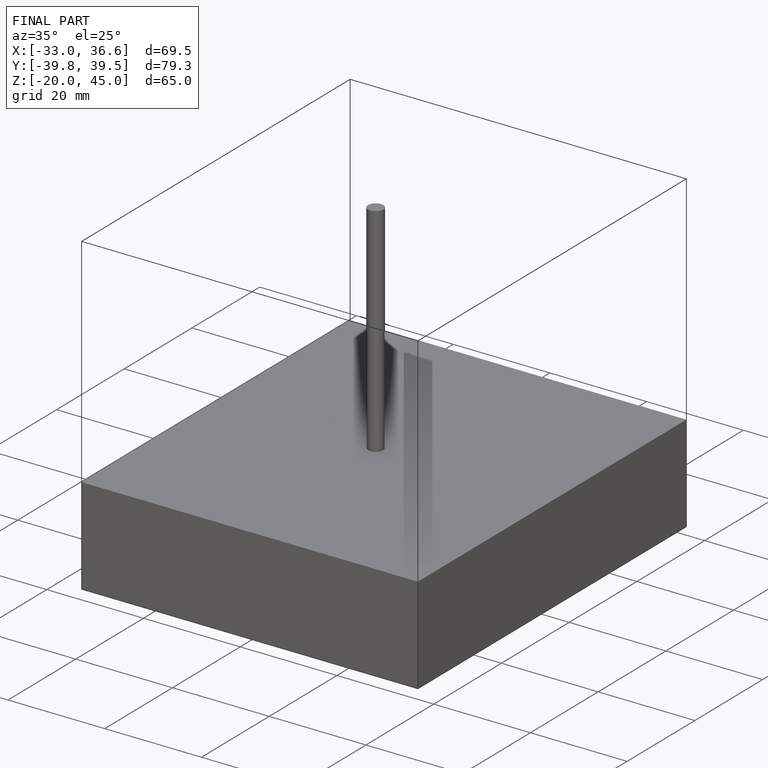
[diagram: finished part — iso view with bounding-box wireframe]
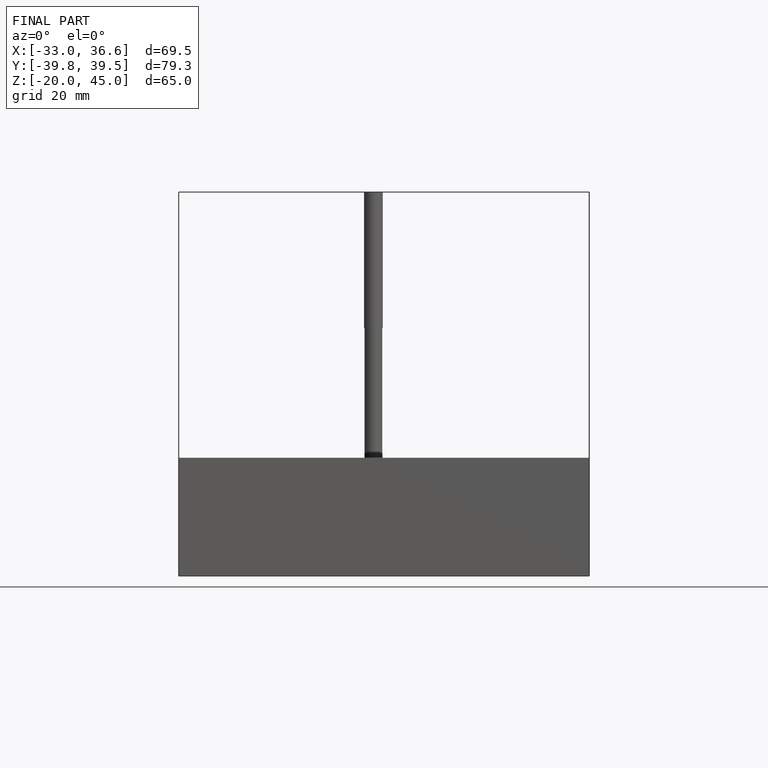
[diagram: finished part — front view with bounding-box wireframe]
